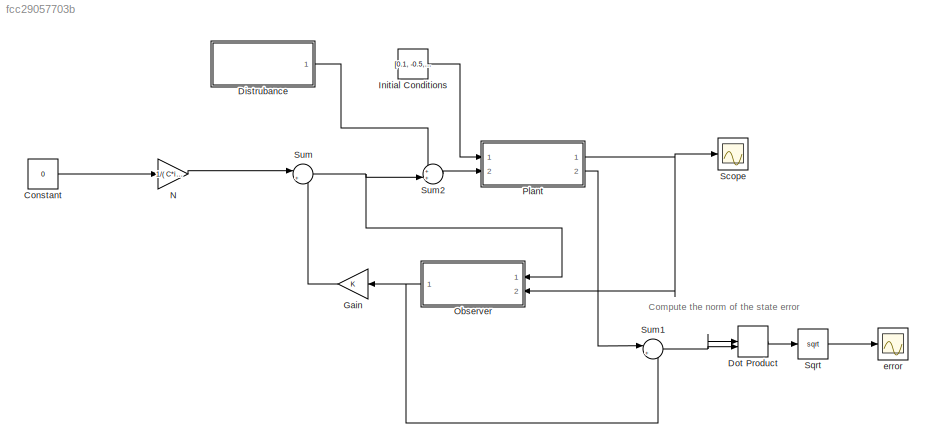
MODEL slx_fcc29057703b
KIND model
CONFIG AbsTol = auto
CONFIG EnableMultiTasking = off
CONFIG FixedStep = auto
CONFIG MaxStep = auto
CONFIG MinStep = auto
CONFIG RelTol = 1e-3
CONFIG SampleTimeConstraint = Unconstrained
CONFIG Solver = VariableStepAuto
CONFIG SolverName = VariableStepAuto
CONFIG StartTime = 0.0
CONFIG StopTime = 10.0
BLOCK [Constant] Constant
  Value = 0
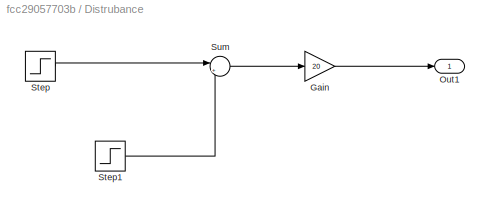
BLOCK [SubSystem] Distrubance
  Ports = [0, 1]
  RequestExecContextInheritance = off
BLOCK [Gain] Distrubance/Gain
  Gain = 20
  OutDataTypeStr = Inherit: Inherit via internal rule
  ParamDataTypeStr = Inherit: Inherit via internal rule
  SaturateOnIntegerOverflow = off
BLOCK [Outport] Distrubance/Out1
  IconDisplay = Port number
BLOCK [Step] Distrubance/Step
  SampleTime = 0
  Time = 5
BLOCK [Step] Distrubance/Step1
  After = -1
  SampleTime = 0
  Time = 5.1
BLOCK [Sum] Distrubance/Sum
  IconShape = round
  InputSameDT = off
  Inputs = |++
  OutDataTypeStr = Inherit: Inherit via internal rule
  Ports = [2, 1]
  SaturateOnIntegerOverflow = off
BLOCK [DotProduct] Dot Product
  OutDataTypeStr = Inherit: Inherit via internal rule
BLOCK [Gain] Gain
  Gain = K
  Multiplication = Matrix(K*u)
  OutDataTypeStr = Inherit: Inherit via internal rule
  ParamDataTypeStr = Inherit: Inherit via internal rule
  SaturateOnIntegerOverflow = off
BLOCK [Constant] Initial Conditions
  Value = [0.1, -0.5, 2, 4]
BLOCK [Gain] N
  Gain = 1/( C*inv(-A+B*K)*B )
  Multiplication = Matrix(K*u)
  OutDataTypeStr = Inherit: Inherit via internal rule
  ParamDataTypeStr = Inherit: Inherit via internal rule
  SaturateOnIntegerOverflow = off
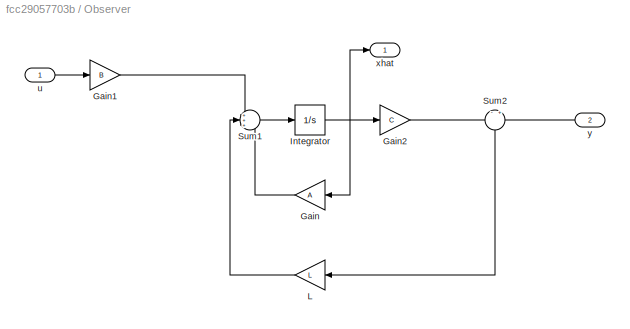
BLOCK [SubSystem] Observer 
  Ports = [2, 1]
  RequestExecContextInheritance = off
BLOCK [Gain] Observer /Gain
  Gain = A
  Multiplication = Matrix(K*u)
  OutDataTypeStr = Inherit: Inherit via internal rule
  ParamDataTypeStr = Inherit: Inherit via internal rule
  SaturateOnIntegerOverflow = off
BLOCK [Gain] Observer /Gain1
  Gain = B
  Multiplication = Matrix(K*u)
  OutDataTypeStr = Inherit: Inherit via internal rule
  ParamDataTypeStr = Inherit: Inherit via internal rule
  SaturateOnIntegerOverflow = off
BLOCK [Gain] Observer /Gain2
  Gain = C
  Multiplication = Matrix(K*u)
  OutDataTypeStr = Inherit: Inherit via internal rule
  ParamDataTypeStr = Inherit: Inherit via internal rule
  SaturateOnIntegerOverflow = off
BLOCK [Integrator] Observer /Integrator
  Ports = [1, 1]
BLOCK [Gain] Observer /L
  Gain = L
  Multiplication = Matrix(K*u)
  OutDataTypeStr = Inherit: Inherit via internal rule
  ParamDataTypeStr = Inherit: Inherit via internal rule
  SaturateOnIntegerOverflow = off
BLOCK [Sum] Observer /Sum1
  IconShape = round
  InputSameDT = off
  Inputs = +++
  OutDataTypeStr = Inherit: Inherit via internal rule
  Ports = [3, 1]
  SaturateOnIntegerOverflow = off
BLOCK [Sum] Observer /Sum2
  IconShape = round
  InputSameDT = off
  Inputs = -|+
  OutDataTypeStr = Inherit: Inherit via internal rule
  Ports = [2, 1]
  SaturateOnIntegerOverflow = off
BLOCK [Inport] Observer /u
  IconDisplay = Port number
BLOCK [Outport] Observer /xhat
  IconDisplay = Port number
BLOCK [Inport] Observer /y
  IconDisplay = Port number
  Port = 2
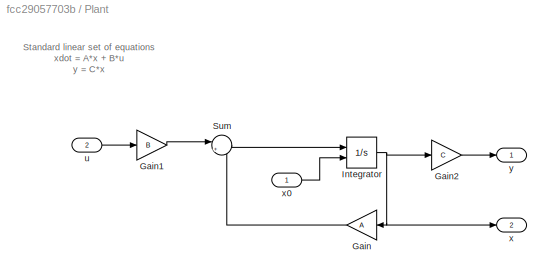
BLOCK [SubSystem] Plant
  Ports = [2, 2]
  RequestExecContextInheritance = off
BLOCK [Gain] Plant/Gain
  Gain = A
  Multiplication = Matrix(K*u)
  OutDataTypeStr = Inherit: Inherit via internal rule
  ParamDataTypeStr = Inherit: Inherit via internal rule
  SaturateOnIntegerOverflow = off
BLOCK [Gain] Plant/Gain1
  Gain = B
  Multiplication = Matrix(K*u)
  OutDataTypeStr = Inherit: Inherit via internal rule
  ParamDataTypeStr = Inherit: Inherit via internal rule
  SaturateOnIntegerOverflow = off
BLOCK [Gain] Plant/Gain2
  Gain = C
  Multiplication = Matrix(K*u)
  OutDataTypeStr = Inherit: Inherit via internal rule
  ParamDataTypeStr = Inherit: Inherit via internal rule
  SaturateOnIntegerOverflow = off
BLOCK [Integrator] Plant/Integrator
  InitialConditionSource = external
  Ports = [2, 1]
BLOCK [Sum] Plant/Sum
  IconShape = round
  InputSameDT = off
  Inputs = |++
  OutDataTypeStr = Inherit: Inherit via internal rule
  Ports = [2, 1]
  SaturateOnIntegerOverflow = off
BLOCK [Inport] Plant/u
  IconDisplay = Port number
  Port = 2
BLOCK [Outport] Plant/x
  IconDisplay = Port number
  Port = 2
BLOCK [Inport] Plant/x0
  IconDisplay = Port number
BLOCK [Outport] Plant/y 
  IconDisplay = Port number
BLOCK [Scope] Scope
  Floating = off
  NumInputPorts = 1
  Ports = [1]
  ScopeSpecificationString = Simulink.scopes.TimeScopeBlockCfg('CurrentConfiguration', extmgr.ConfigurationSet(extmgr.Configuration('Core','General UI',true),extmgr.Configuration('Core','Source UI',true),extmgr.Configuration('Sources','WiredSimulink',true),extmgr.Configuration('Visuals','Time Domain',true,'SerializedDisplays',{struct('MinYLimReal','-2.80663','MaxYLimReal','5.43531','YLabelReal','','MinYLimMag','0.00000','MaxY...<+1382ch>
BLOCK [Sqrt] Sqrt
BLOCK [Sum] Sum
  IconShape = round
  InputSameDT = off
  Inputs = |+-
  OutDataTypeStr = Inherit: Inherit via internal rule
  Ports = [2, 1]
  SaturateOnIntegerOverflow = off
BLOCK [Sum] Sum1
  IconShape = round
  InputSameDT = off
  Inputs = |+-
  OutDataTypeStr = Inherit: Inherit via internal rule
  Ports = [2, 1]
  SaturateOnIntegerOverflow = off
BLOCK [Sum] Sum2
  IconShape = round
  InputSameDT = off
  Inputs = ++|
  OutDataTypeStr = Inherit: Inherit via internal rule
  Ports = [2, 1]
  SaturateOnIntegerOverflow = off
BLOCK [Scope] error
  Floating = off
  NumInputPorts = 1
  Ports = [1]
  ScopeSpecificationString = Simulink.scopes.TimeScopeBlockCfg('CurrentConfiguration', extmgr.ConfigurationSet(extmgr.Configuration('Core','General UI',true),extmgr.Configuration('Core','Source UI',true),extmgr.Configuration('Sources','WiredSimulink',true,'DataLoggingVariableName','ScopeData1'),extmgr.Configuration('Visuals','Time Domain',true,'SerializedDisplays',{struct('MinYLimReal','-6.2687','MaxYLimReal','56.42771','YLab...<+1420ch>
ANNOTATION (root): Compute the norm of the state error
ANNOTATION Plant: Standard linear set of equations xdot = A*x + B*u y = C*x
LINE Constant:1 -> N:1
LINE Distrubance/Gain:1 -> Distrubance/Out1:1
LINE Distrubance/Step1:1 -> Distrubance/Sum:2
LINE Distrubance/Step:1 -> Distrubance/Sum:1
LINE Distrubance/Sum:1 -> Distrubance/Gain:1
LINE Distrubance:1 -> Sum2:1
LINE Dot Product:1 -> Sqrt:1
LINE Gain:1 -> Sum:2
LINE Initial Conditions:1 -> Plant:1
LINE N:1 -> Sum:1
LINE Observer /Gain1:1 -> Observer /Sum1:1
LINE Observer /Gain2:1 -> Observer /Sum2:1
LINE Observer /Gain:1 -> Observer /Sum1:3
NET Observer /Integrator:1 -> Observer /Gain2:1, Observer /Gain:1, Observer /xhat:1
LINE Observer /L:1 -> Observer /Sum1:2
LINE Observer /Sum1:1 -> Observer /Integrator:1
LINE Observer /Sum2:1 -> Observer /L:1
LINE Observer /u:1 -> Observer /Gain1:1
LINE Observer /y:1 -> Observer /Sum2:2
NET Observer :1 -> Gain:1, Sum1:2
LINE Plant/Gain1:1 -> Plant/Sum:1
LINE Plant/Gain2:1 -> Plant/y :1
LINE Plant/Gain:1 -> Plant/Sum:2
NET Plant/Integrator:1 -> Plant/Gain2:1, Plant/Gain:1, Plant/x:1
LINE Plant/Sum:1 -> Plant/Integrator:1
LINE Plant/u:1 -> Plant/Gain1:1
LINE Plant/x0:1 -> Plant/Integrator:2
NET Plant:1 -> Observer :2, Scope:1
LINE Plant:2 -> Sum1:1
LINE Sqrt:1 -> error:1
NET Sum1:1 -> Dot Product:1, Dot Product:2
LINE Sum2:1 -> Plant:2
NET Sum:1 -> Observer :1, Sum2:2
note: NET lines group one-source signal fan-out (src -> all destinations, sorted); 1:1 wires keep LINE
